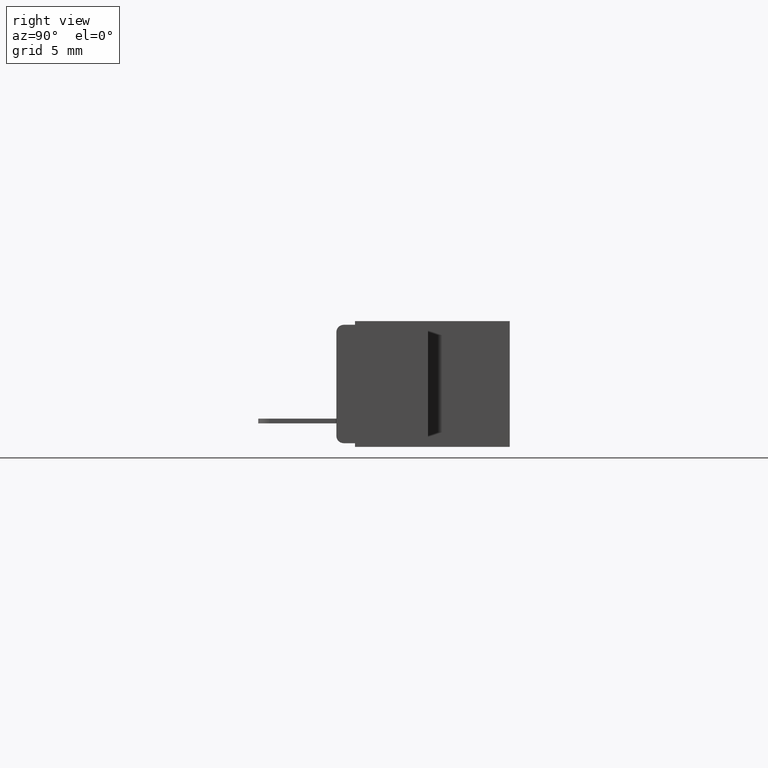
[diagram: clean part render]
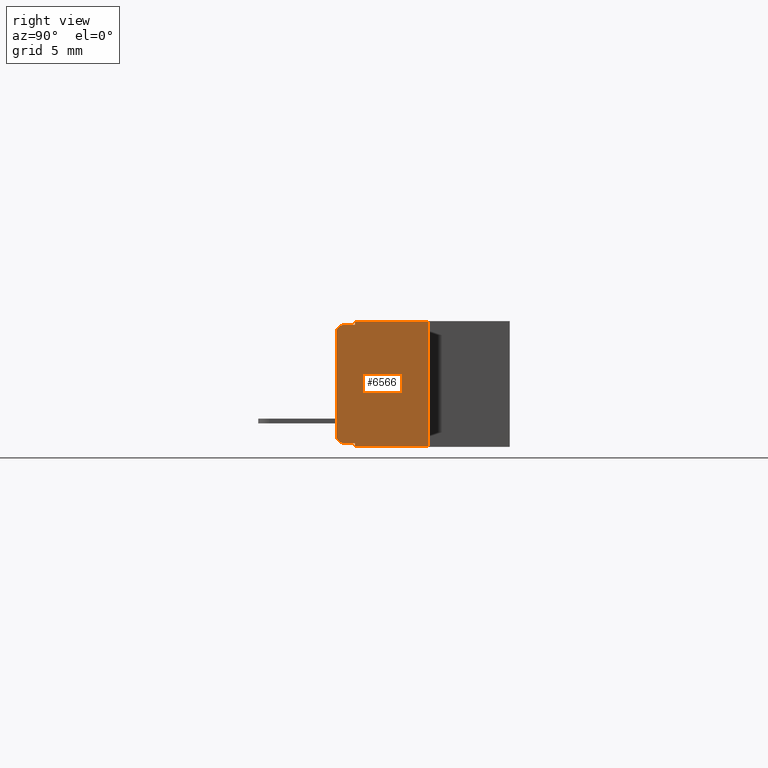
[diagram: same view with one face highlighted and labeled with its STEP entity id]
A machine part, right view. The second image highlights one B-rep face of the part: STEP entity #6566.
In plain terms, the highlighted planar face has unit normal (-1, 0, 0).
Its self-contained STEP definition (entity closure, byte-faithful):
#480 = CIRCLE ( 'NONE', #1005, 0.01999999999999999000 ) ;
#669 = CARTESIAN_POINT ( 'NONE',  ( 1.842000000000000700, 0.05099999999999999700, 0.0000000000000000000 ) ) ;
#689 = ORIENTED_EDGE ( 'NONE', *, *, #11147, .T. ) ;
#857 = CARTESIAN_POINT ( 'NONE',  ( 1.842000000000000700, 0.05099999999999999700, -0.3430000000000000300 ) ) ;
#1003 = VERTEX_POINT ( 'NONE', #11470 ) ;
#1005 = AXIS2_PLACEMENT_3D ( 'NONE', #11075, #9098, #6468 ) ;
#1100 = LINE ( 'NONE', #5285, #6972 ) ;
#1110 = VERTEX_POINT ( 'NONE', #857 ) ;
#1264 = ORIENTED_EDGE ( 'NONE', *, *, #2348, .T. ) ;
#1385 = VERTEX_POINT ( 'NONE', #4676 ) ;
#1535 = LINE ( 'NONE', #5618, #6495 ) ;
#1809 = CARTESIAN_POINT ( 'NONE',  ( 1.842000000000000700, 0.02000000000000000000, -0.03000000000000015800 ) ) ;
#1837 = EDGE_CURVE ( 'NONE', #5495, #1110, #6752, .T. ) ;
#2160 = EDGE_CURVE ( 'NONE', #4030, #1110, #5436, .T. ) ;
#2178 = EDGE_CURVE ( 'NONE', #8801, #5495, #4832, .T. ) ;
#2318 = EDGE_CURVE ( 'NONE', #11117, #1385, #4076, .T. ) ;
#2348 = EDGE_CURVE ( 'NONE', #8801, #11117, #3964, .T. ) ;
#2369 = ORIENTED_EDGE ( 'NONE', *, *, #2160, .T. ) ;
#2415 = ORIENTED_EDGE ( 'NONE', *, *, #11317, .F. ) ;
#2613 = VERTEX_POINT ( 'NONE', #11160 ) ;
#3449 = EDGE_CURVE ( 'NONE', #1003, #8380, #9472, .T. ) ;
#3905 = VECTOR ( 'NONE', #8356, 39.37007874015748100 ) ;
#3915 = AXIS2_PLACEMENT_3D ( 'NONE', #9402, #9116, #8903 ) ;
#3964 = LINE ( 'NONE', #6828, #3905 ) ;
#4011 = VECTOR ( 'NONE', #5394, 39.37007874015748100 ) ;
#4030 = VERTEX_POINT ( 'NONE', #9400 ) ;
#4076 = LINE ( 'NONE', #5891, #4011 ) ;
#4219 = AXIS2_PLACEMENT_3D ( 'NONE', #1809, #6231, #8604 ) ;
#4259 = DIRECTION ( 'NONE',  ( -0.0000000000000000000, -1.000000000000000000, -0.0000000000000000000 ) ) ;
#4326 = CARTESIAN_POINT ( 'NONE',  ( 1.842000000000000700, 0.4729999999999999800, -0.3430000000000000300 ) ) ;
#4409 = ORIENTED_EDGE ( 'NONE', *, *, #3449, .T. ) ;
#4676 = CARTESIAN_POINT ( 'NONE',  ( 1.842000000000000700, 0.05099999999999999700, -0.01000000000000013200 ) ) ;
#4784 = VECTOR ( 'NONE', #6902, 39.37007874015748100 ) ;
#4832 = LINE ( 'NONE', #6322, #4784 ) ;
#5067 = VECTOR ( 'NONE', #6693, 39.37007874015748100 ) ;
#5100 = ORIENTED_EDGE ( 'NONE', *, *, #5657, .T. ) ;
#5115 = VERTEX_POINT ( 'NONE', #10352 ) ;
#5285 = CARTESIAN_POINT ( 'NONE',  ( 1.842000000000000700, 0.05099999999999999700, -0.3330000000000001300 ) ) ;
#5394 = DIRECTION ( 'NONE',  ( 0.0000000000000000000, 0.0000000000000000000, -1.000000000000000000 ) ) ;
#5436 = LINE ( 'NONE', #6982, #5067 ) ;
#5495 = VERTEX_POINT ( 'NONE', #9483 ) ;
#5527 = DIRECTION ( 'NONE',  ( -0.0000000000000000000, -1.000000000000000000, -0.0000000000000000000 ) ) ;
#5618 = CARTESIAN_POINT ( 'NONE',  ( 1.842000000000000700, 0.05099999999999999700, -0.01000000000000013200 ) ) ;
#5657 = EDGE_CURVE ( 'NONE', #1385, #5115, #1535, .T. ) ;
#5675 = EDGE_CURVE ( 'NONE', #5115, #1003, #8808, .T. ) ;
#5891 = CARTESIAN_POINT ( 'NONE',  ( 1.842000000000000700, 0.05099999999999999700, 0.0000000000000000000 ) ) ;
#6231 = DIRECTION ( 'NONE',  ( 1.000000000000000000, -0.0000000000000000000, -0.0000000000000000000 ) ) ;
#6322 = CARTESIAN_POINT ( 'NONE',  ( 1.842000000000000700, 0.2499999999999999700, 0.0000000000000000000 ) ) ;
#6397 = ORIENTED_EDGE ( 'NONE', *, *, #5675, .T. ) ;
#6468 = DIRECTION ( 'NONE',  ( 0.0000000000000000000, 0.0000000000000000000, 1.000000000000000000 ) ) ;
#6495 = VECTOR ( 'NONE', #5527, 39.37007874015748100 ) ;
#6566 = ADVANCED_FACE ( 'NONE', ( #8658 ), #9390, .F. ) ;
#6569 = CARTESIAN_POINT ( 'NONE',  ( 1.842000000000000700, 0.0000000000000000000, 0.0000000000000000000 ) ) ;
#6693 = DIRECTION ( 'NONE',  ( 0.0000000000000000000, 0.0000000000000000000, -1.000000000000000000 ) ) ;
#6752 = LINE ( 'NONE', #4326, #6866 ) ;
#6828 = CARTESIAN_POINT ( 'NONE',  ( 1.842000000000000700, 0.4729999999999999800, 0.0000000000000000000 ) ) ;
#6866 = VECTOR ( 'NONE', #4259, 39.37007874015748100 ) ;
#6902 = DIRECTION ( 'NONE',  ( 0.0000000000000000000, 0.0000000000000000000, -1.000000000000000000 ) ) ;
#6972 = VECTOR ( 'NONE', #7803, 39.37007874015748100 ) ;
#6982 = CARTESIAN_POINT ( 'NONE',  ( 1.842000000000000700, 0.05099999999999999700, 0.0000000000000000000 ) ) ;
#7278 = EDGE_LOOP ( 'NONE', ( #4409, #689, #2415, #2369, #10509, #9080, #1264, #8036, #5100, #6397 ) ) ;
#7734 = CARTESIAN_POINT ( 'NONE',  ( 1.842000000000000700, 0.0000000000000000000, -0.3130000000000001100 ) ) ;
#7803 = DIRECTION ( 'NONE',  ( -0.0000000000000000000, -1.000000000000000000, -0.0000000000000000000 ) ) ;
#8036 = ORIENTED_EDGE ( 'NONE', *, *, #2318, .T. ) ;
#8278 = DIRECTION ( 'NONE',  ( 0.0000000000000000000, 0.0000000000000000000, -1.000000000000000000 ) ) ;
#8356 = DIRECTION ( 'NONE',  ( -0.0000000000000000000, -1.000000000000000000, -0.0000000000000000000 ) ) ;
#8380 = VERTEX_POINT ( 'NONE', #7734 ) ;
#8604 = DIRECTION ( 'NONE',  ( 0.0000000000000000000, 0.0000000000000000000, 1.000000000000000000 ) ) ;
#8658 = FACE_OUTER_BOUND ( 'NONE', #7278, .T. ) ;
#8801 = VERTEX_POINT ( 'NONE', #10510 ) ;
#8808 = CIRCLE ( 'NONE', #4219, 0.02000000000000000000 ) ;
#8903 = DIRECTION ( 'NONE',  ( 0.0000000000000000000, 0.0000000000000000000, 1.000000000000000000 ) ) ;
#9080 = ORIENTED_EDGE ( 'NONE', *, *, #2178, .F. ) ;
#9098 = DIRECTION ( 'NONE',  ( 1.000000000000000000, -0.0000000000000000000, -0.0000000000000000000 ) ) ;
#9116 = DIRECTION ( 'NONE',  ( -1.000000000000000000, 0.0000000000000000000, 0.0000000000000000000 ) ) ;
#9243 = VECTOR ( 'NONE', #8278, 39.37007874015748100 ) ;
#9390 = PLANE ( 'NONE',  #3915 ) ;
#9400 = CARTESIAN_POINT ( 'NONE',  ( 1.842000000000000700, 0.05099999999999999700, -0.3330000000000001300 ) ) ;
#9402 = CARTESIAN_POINT ( 'NONE',  ( 1.842000000000000700, 0.4729999999999999800, 0.0000000000000000000 ) ) ;
#9472 = LINE ( 'NONE', #6569, #9243 ) ;
#9483 = CARTESIAN_POINT ( 'NONE',  ( 1.842000000000000700, 0.2499999999999999700, -0.3430000000000000300 ) ) ;
#10352 = CARTESIAN_POINT ( 'NONE',  ( 1.842000000000000700, 0.02000000000000000000, -0.01000000000000013200 ) ) ;
#10509 = ORIENTED_EDGE ( 'NONE', *, *, #1837, .F. ) ;
#10510 = CARTESIAN_POINT ( 'NONE',  ( 1.842000000000000700, 0.2499999999999999700, 0.0000000000000000000 ) ) ;
#11075 = CARTESIAN_POINT ( 'NONE',  ( 1.842000000000000700, 0.02000000000000000000, -0.3130000000000001100 ) ) ;
#11117 = VERTEX_POINT ( 'NONE', #669 ) ;
#11147 = EDGE_CURVE ( 'NONE', #8380, #2613, #480, .T. ) ;
#11160 = CARTESIAN_POINT ( 'NONE',  ( 1.842000000000000700, 0.02000000000000000000, -0.3330000000000001300 ) ) ;
#11317 = EDGE_CURVE ( 'NONE', #4030, #2613, #1100, .T. ) ;
#11470 = CARTESIAN_POINT ( 'NONE',  ( 1.842000000000000700, 0.0000000000000000000, -0.03000000000000015800 ) ) ;